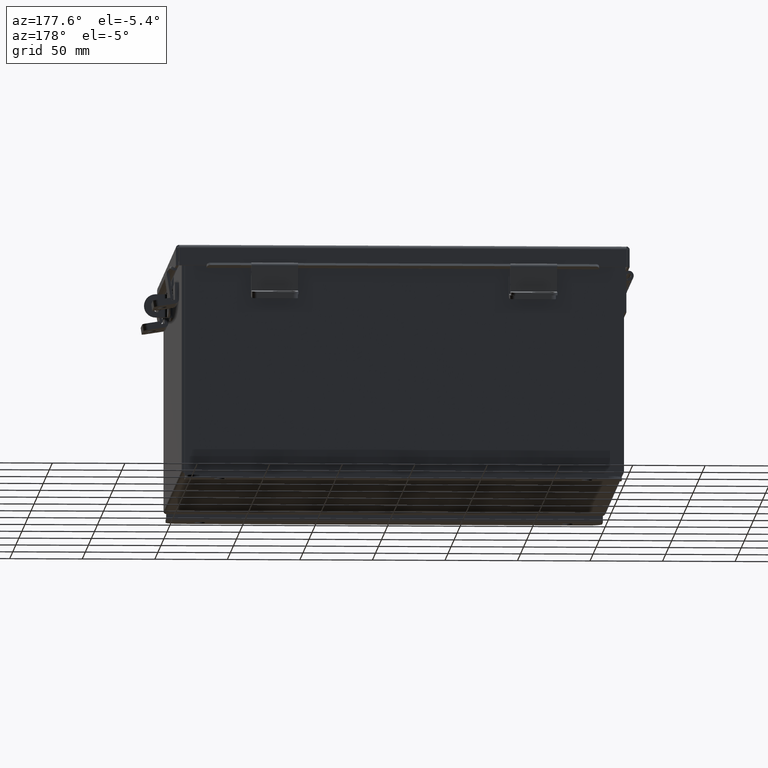
[diagram: clean part render]
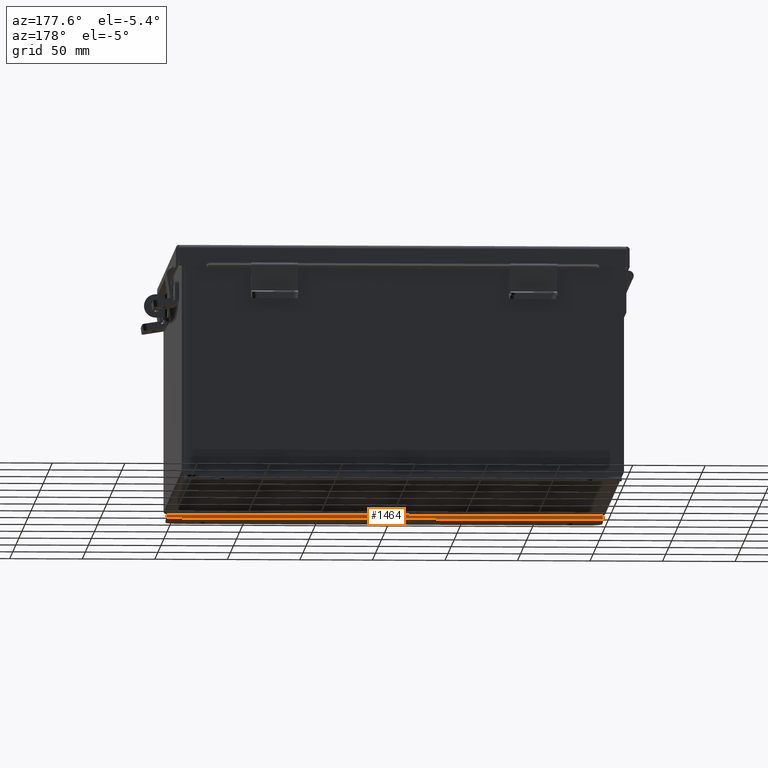
[diagram: same view with one face highlighted and labeled with its STEP entity id]
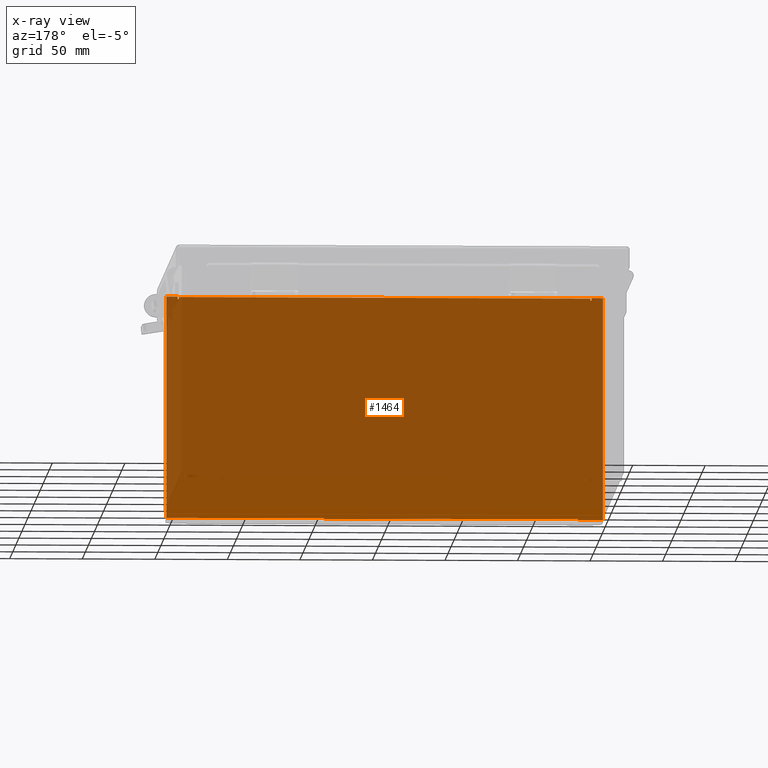
[diagram: x-ray of the same camera — body ghosted, the highlighted face saturated]
A machine part, auxiliary view. The second image highlights one B-rep face of the part: STEP entity #1464.
The next image is the same camera in x-ray: the body ghosted, the highlighted face saturated — about 95% of this face is hidden behind the body in this view.
In plain terms, the highlighted planar face has unit normal (-0, 1, -0).
Its self-contained STEP definition (entity closure, byte-faithful):
#186 = CARTESIAN_POINT ( 'NONE',  ( 5.619649999999999100, -0.07469999999999142600, 2.874949999999998800 ) ) ;
#267 = DIRECTION ( 'NONE',  ( 1.000000000000000000, 4.910036603141682400E-031, -0.0000000000000000000 ) ) ;
#296 = EDGE_CURVE ( 'NONE', #1749, #2198, #3443, .T. ) ;
#495 = DIRECTION ( 'NONE',  ( -4.910036603141682400E-031, -1.000000000000000000, 0.0000000000000000000 ) ) ;
#806 = DIRECTION ( 'NONE',  ( 1.000000000000000000, 4.910036603141682400E-031, 0.0000000000000000000 ) ) ;
#843 = CARTESIAN_POINT ( 'NONE',  ( -5.582300000000000000, -0.07469999999999797600, 2.874949999999998800 ) ) ;
#848 = VERTEX_POINT ( 'NONE', #9805 ) ;
#1148 = LINE ( 'NONE', #10408, #4791 ) ;
#1161 = VERTEX_POINT ( 'NONE', #8921 ) ;
#1294 = VECTOR ( 'NONE', #11557, 39.37007874015748100 ) ;
#1365 = ORIENTED_EDGE ( 'NONE', *, *, #2818, .T. ) ;
#1464 = ADVANCED_FACE ( 'NONE', ( #1927 ), #11144, .T. ) ;
#1529 = EDGE_CURVE ( 'NONE', #6413, #848, #11615, .T. ) ;
#1568 = ORIENTED_EDGE ( 'NONE', *, *, #10883, .F. ) ;
#1636 = CARTESIAN_POINT ( 'NONE',  ( -5.925300000000001800, -0.07470000000000015500, 2.925300000000000000 ) ) ;
#1725 = EDGE_CURVE ( 'NONE', #3159, #6413, #15955, .T. ) ;
#1749 = VERTEX_POINT ( 'NONE', #3497 ) ;
#1927 = FACE_OUTER_BOUND ( 'NONE', #3094, .T. ) ;
#1989 = ORIENTED_EDGE ( 'NONE', *, *, #11184, .F. ) ;
#2081 = VECTOR ( 'NONE', #5781, 39.37007874015748100 ) ;
#2149 = CARTESIAN_POINT ( 'NONE',  ( 5.582299999999999200, -0.07469999999999142600, 2.912299999999998800 ) ) ;
#2198 = VERTEX_POINT ( 'NONE', #9866 ) ;
#2267 = CARTESIAN_POINT ( 'NONE',  ( 5.582299999999999200, -0.07469999999998923300, 2.912299999999998800 ) ) ;
#2818 = EDGE_CURVE ( 'NONE', #12001, #1161, #7690, .T. ) ;
#3094 = EDGE_LOOP ( 'NONE', ( #1989, #15329, #17766, #8898, #1365, #13041, #13173, #5196, #6715, #3838, #1568, #6674 ) ) ;
#3159 = VERTEX_POINT ( 'NONE', #1636 ) ;
#3443 = LINE ( 'NONE', #843, #3870 ) ;
#3497 = CARTESIAN_POINT ( 'NONE',  ( -5.582300000000000000, -0.07470000000000015500, 2.874949999999998800 ) ) ;
#3533 = DIRECTION ( 'NONE',  ( 0.0000000000000000000, 0.0000000000000000000, -1.000000000000000000 ) ) ;
#3611 = EDGE_CURVE ( 'NONE', #5112, #8145, #5963, .T. ) ;
#3774 = CARTESIAN_POINT ( 'NONE',  ( 5.582299999999999200, -0.07469999999999142600, 2.874949999999998800 ) ) ;
#3838 = ORIENTED_EDGE ( 'NONE', *, *, #3611, .F. ) ;
#3870 = VECTOR ( 'NONE', #15851, 39.37007874015748100 ) ;
#3935 = VERTEX_POINT ( 'NONE', #12046 ) ;
#4546 = DIRECTION ( 'NONE',  ( 0.0000000000000000000, 2.272018564740578300E-014, -1.000000000000000000 ) ) ;
#4791 = VECTOR ( 'NONE', #806, 39.37007874015748100 ) ;
#4951 = VERTEX_POINT ( 'NONE', #10487 ) ;
#5112 = VERTEX_POINT ( 'NONE', #2149 ) ;
#5191 = DIRECTION ( 'NONE',  ( 0.0000000000000000000, 0.0000000000000000000, -1.000000000000000000 ) ) ;
#5196 = ORIENTED_EDGE ( 'NONE', *, *, #7209, .F. ) ;
#5574 = LINE ( 'NONE', #17592, #16159 ) ;
#5781 = DIRECTION ( 'NONE',  ( 2.170286390199955400E-014, -2.272018564740578300E-014, 1.000000000000000000 ) ) ;
#5802 = CARTESIAN_POINT ( 'NONE',  ( -5.600975000000000000, -0.07469999999999797600, 2.874949999999998800 ) ) ;
#5804 = AXIS2_PLACEMENT_3D ( 'NONE', #16855, #10781, #14047 ) ;
#5906 = CARTESIAN_POINT ( 'NONE',  ( -5.619650000000000000, -0.07470000000000015500, 2.925299999999999100 ) ) ;
#5963 = LINE ( 'NONE', #2267, #9170 ) ;
#6273 = VECTOR ( 'NONE', #5191, 39.37007874015748100 ) ;
#6413 = VERTEX_POINT ( 'NONE', #5906 ) ;
#6591 = CARTESIAN_POINT ( 'NONE',  ( -5.925300000000001800, -0.07470000000000015500, 2.925300000000000000 ) ) ;
#6674 = ORIENTED_EDGE ( 'NONE', *, *, #296, .F. ) ;
#6715 = ORIENTED_EDGE ( 'NONE', *, *, #15427, .F. ) ;
#7200 = DIRECTION ( 'NONE',  ( 0.0000000000000000000, 0.0000000000000000000, -1.000000000000000000 ) ) ;
#7209 = EDGE_CURVE ( 'NONE', #7684, #4951, #9382, .T. ) ;
#7405 = VECTOR ( 'NONE', #16258, 39.37007874015748100 ) ;
#7501 = VECTOR ( 'NONE', #4546, 39.37007874015748100 ) ;
#7684 = VERTEX_POINT ( 'NONE', #186 ) ;
#7690 = LINE ( 'NONE', #9692, #17841 ) ;
#8030 = EDGE_CURVE ( 'NONE', #4951, #3935, #1148, .T. ) ;
#8145 = VERTEX_POINT ( 'NONE', #3774 ) ;
#8384 = CIRCLE ( 'NONE', #8498, 0.01867500000000003900 ) ;
#8498 = AXIS2_PLACEMENT_3D ( 'NONE', #8708, #495, #10088 ) ;
#8708 = CARTESIAN_POINT ( 'NONE',  ( 5.600974999999998300, -0.07469999999998923300, 2.874949999999998800 ) ) ;
#8898 = ORIENTED_EDGE ( 'NONE', *, *, #11560, .F. ) ;
#8921 = CARTESIAN_POINT ( 'NONE',  ( 5.925299999999999100, -0.07470000000000015500, -3.099300000000004400 ) ) ;
#9170 = VECTOR ( 'NONE', #3533, 39.37007874015748100 ) ;
#9245 = CARTESIAN_POINT ( 'NONE',  ( 5.925299999999999100, -0.07469999999999142600, 2.925300000000000000 ) ) ;
#9382 = LINE ( 'NONE', #13950, #2081 ) ;
#9692 = CARTESIAN_POINT ( 'NONE',  ( -5.925300000000001800, -0.07470000000000889800, -3.099299999999999900 ) ) ;
#9798 = CARTESIAN_POINT ( 'NONE',  ( -5.925300000000001800, -0.07470000000000015500, 2.925300000000000000 ) ) ;
#9805 = CARTESIAN_POINT ( 'NONE',  ( -5.619650000000000000, -0.07470000000000015500, 2.874949999999997900 ) ) ;
#9866 = CARTESIAN_POINT ( 'NONE',  ( -5.582300000000000000, -0.07470000000000015500, 2.912299999999998800 ) ) ;
#9923 = LINE ( 'NONE', #9245, #6273 ) ;
#10088 = DIRECTION ( 'NONE',  ( 0.0000000000000000000, 0.0000000000000000000, -1.000000000000000000 ) ) ;
#10184 = CARTESIAN_POINT ( 'NONE',  ( -5.925300000000000000, -0.07470000000000889800, -3.099299999999999900 ) ) ;
#10408 = CARTESIAN_POINT ( 'NONE',  ( -5.925300000000001800, -0.07470000000000015500, 2.925300000000000000 ) ) ;
#10487 = CARTESIAN_POINT ( 'NONE',  ( 5.619650000000000000, -0.07469999999999142600, 2.925300000000000000 ) ) ;
#10629 = LINE ( 'NONE', #6591, #7405 ) ;
#10781 = DIRECTION ( 'NONE',  ( -4.910036603141682400E-031, -1.000000000000000000, -0.0000000000000000000 ) ) ;
#10883 = EDGE_CURVE ( 'NONE', #2198, #5112, #5574, .T. ) ;
#11144 = PLANE ( 'NONE',  #5804 ) ;
#11162 = AXIS2_PLACEMENT_3D ( 'NONE', #5802, #15455, #7200 ) ;
#11184 = EDGE_CURVE ( 'NONE', #848, #1749, #16295, .T. ) ;
#11557 = DIRECTION ( 'NONE',  ( 1.000000000000000000, 4.910036603141682400E-031, 0.0000000000000000000 ) ) ;
#11560 = EDGE_CURVE ( 'NONE', #12001, #3159, #10629, .T. ) ;
#11615 = LINE ( 'NONE', #13379, #7501 ) ;
#12001 = VERTEX_POINT ( 'NONE', #10184 ) ;
#12005 = DIRECTION ( 'NONE',  ( 1.000000000000000000, 4.910036603141682400E-031, -0.0000000000000000000 ) ) ;
#12046 = CARTESIAN_POINT ( 'NONE',  ( 5.925299999999999100, -0.07469999999999142600, 2.925300000000000000 ) ) ;
#13041 = ORIENTED_EDGE ( 'NONE', *, *, #15038, .F. ) ;
#13173 = ORIENTED_EDGE ( 'NONE', *, *, #8030, .F. ) ;
#13379 = CARTESIAN_POINT ( 'NONE',  ( -5.619650000000000000, -0.07469999999999907300, 2.925299999999999100 ) ) ;
#13950 = CARTESIAN_POINT ( 'NONE',  ( 5.619649999999999100, -0.07469999999998923300, 2.874949999999998800 ) ) ;
#14047 = DIRECTION ( 'NONE',  ( 0.0000000000000000000, 0.0000000000000000000, -1.000000000000000000 ) ) ;
#15038 = EDGE_CURVE ( 'NONE', #3935, #1161, #9923, .T. ) ;
#15329 = ORIENTED_EDGE ( 'NONE', *, *, #1529, .F. ) ;
#15427 = EDGE_CURVE ( 'NONE', #8145, #7684, #8384, .T. ) ;
#15455 = DIRECTION ( 'NONE',  ( -4.910036603141682400E-031, -1.000000000000000000, 0.0000000000000000000 ) ) ;
#15851 = DIRECTION ( 'NONE',  ( 0.0000000000000000000, 0.0000000000000000000, 1.000000000000000000 ) ) ;
#15955 = LINE ( 'NONE', #9798, #1294 ) ;
#16159 = VECTOR ( 'NONE', #12005, 39.37007874015748100 ) ;
#16258 = DIRECTION ( 'NONE',  ( 0.0000000000000000000, 0.0000000000000000000, 1.000000000000000000 ) ) ;
#16295 = CIRCLE ( 'NONE', #11162, 0.01867500000000003900 ) ;
#16855 = CARTESIAN_POINT ( 'NONE',  ( 0.0000000000000000000, -0.07470000000000015500, 0.0000000000000000000 ) ) ;
#17592 = CARTESIAN_POINT ( 'NONE',  ( -5.582300000000000900, -0.07469999999999797600, 2.912299999999998800 ) ) ;
#17766 = ORIENTED_EDGE ( 'NONE', *, *, #1725, .F. ) ;
#17841 = VECTOR ( 'NONE', #267, 39.37007874015748100 ) ;